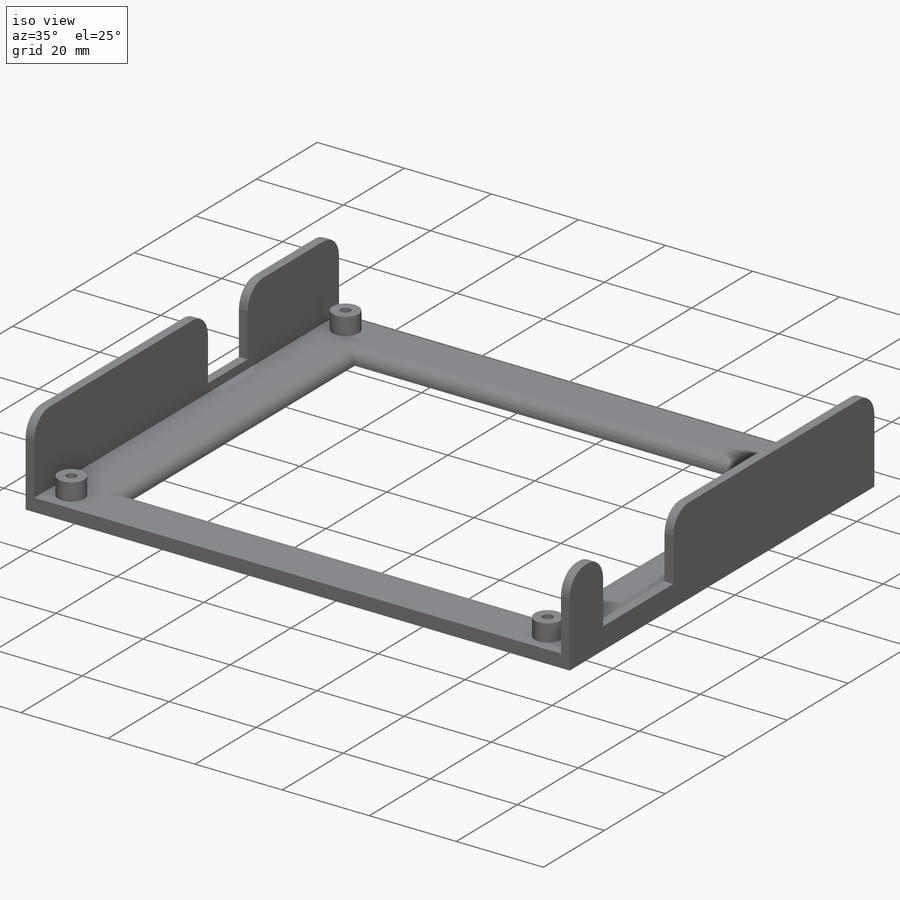
[diagram: iso view]
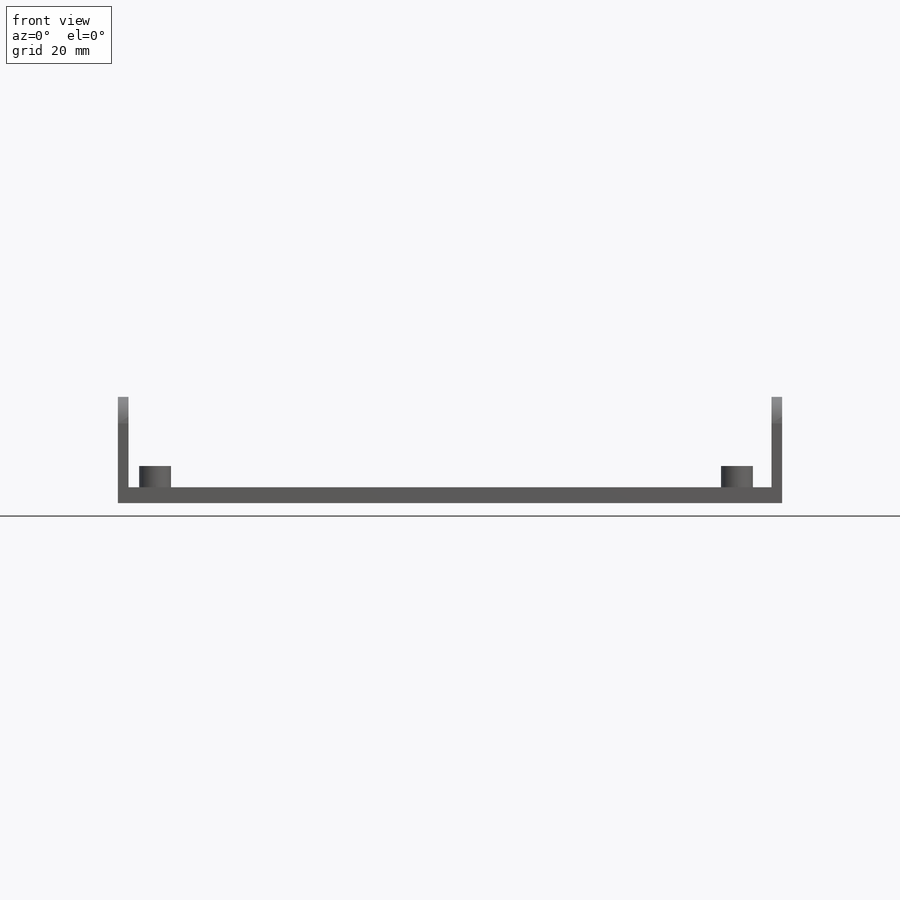
[diagram: front view]
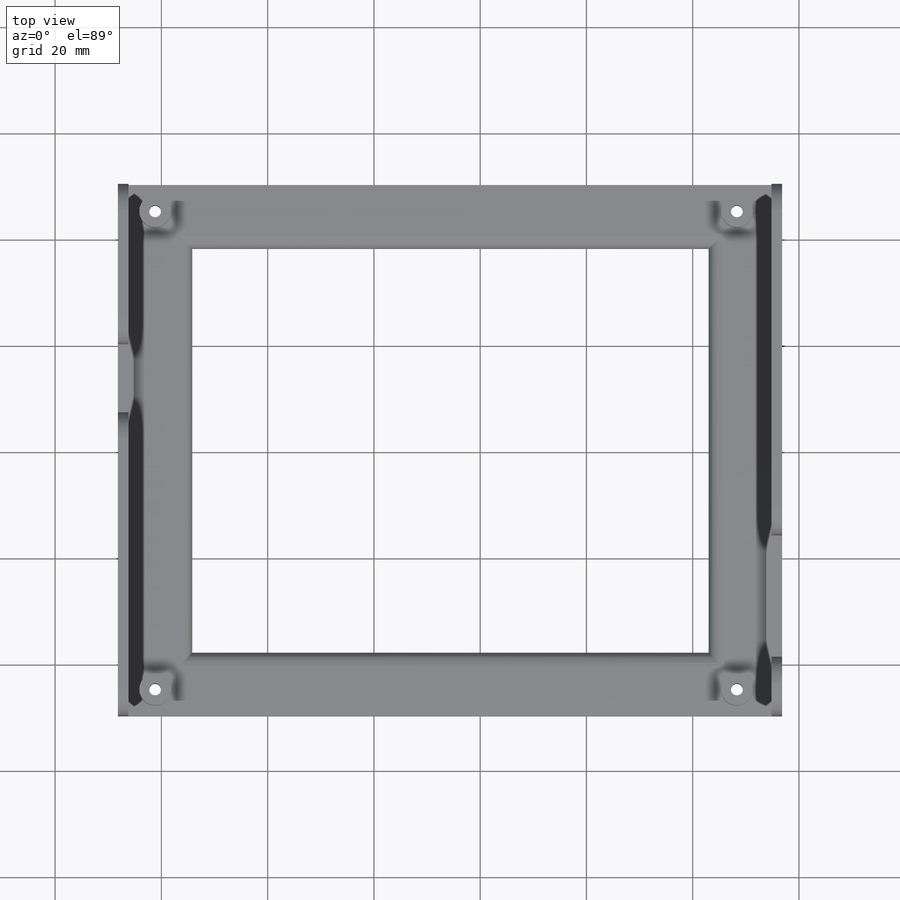
[diagram: top view]
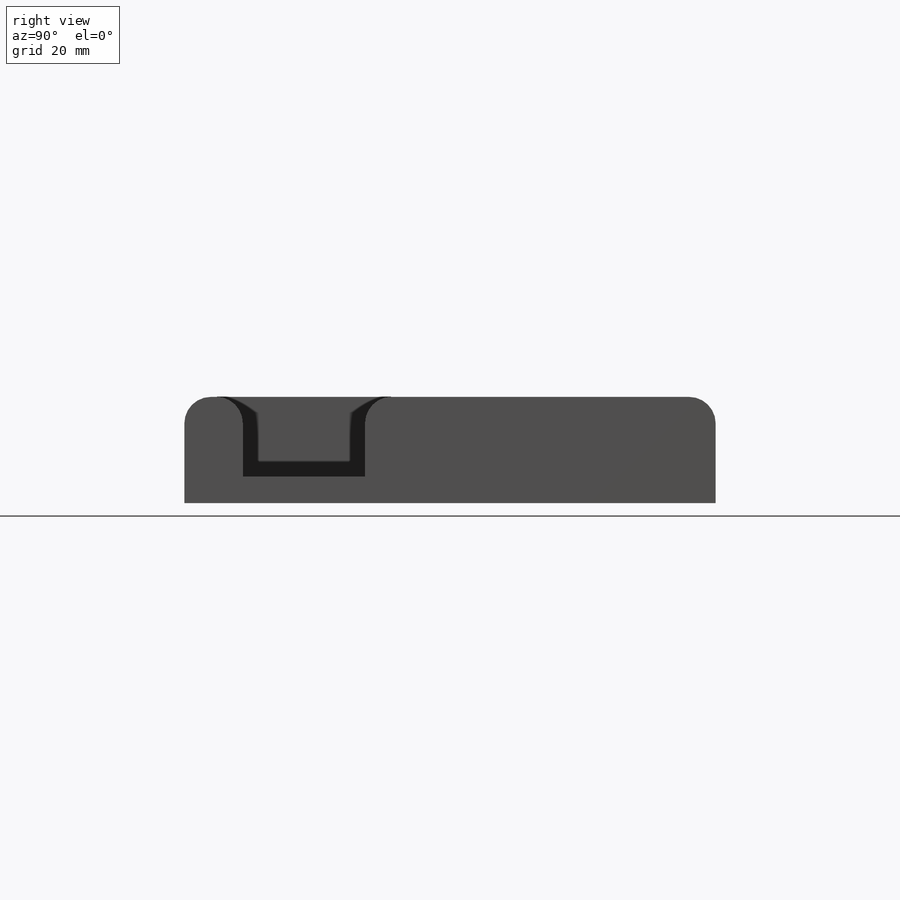
[diagram: right view]
SOLIDWORKS PART (.sldprt)
format: sldprt  version: not decoded by parser v0  size: 319,488 bytes
history: native  units: mm
features: sketch x7, cut_extrude x4, extrude x3, fillet x3, material x1 (+13 scaffold rows collapsed)
feature tree (31):
  scaffold x13  (default folders/planes/origin — collapsed)
  material  "Material <not specified>"
  sketch  "Sketch1"  dims[D1=100.0mm D2=125.0mm]
  extrude  "Boss-Extrude1"  Depth=3mm
  sketch  "Sketch2"  dims[D1=2.0mm D2=2.0mm]
  extrude  "Boss-Extrude2"  Depth=17mm
  sketch  "Sketch3"  dims[D1=6.0mm D2=5.0mm D3=5.0mm D4=5.0mm]
  extrude  "Boss-Extrude4"  Depth=4mm
  sketch  "Sketch4"  dims[D1=13.0mm D2=30.0mm D3=5.0mm]
  cut_extrude  "Cut-Extrude1"  Depth=2mm
  sketch  "Sketch5"  dims[D1=23.0mm D2=11.0mm D3=5.0mm]
  cut_extrude  "Cut-Extrude2"  Depth=2mm
  sketch  "Sketch6"  dims[D1=2.25mm]
  cut_extrude  "Cut-Extrude3"  Depth=22mm
  fillet  "Fillet1"  Radius=5mm
  fillet  "Fillet2"  Radius=5mm
  sketch  "Sketch7"  dims[D1=12.0mm D2=12.0mm D3=~97.170339mm D4=12.0mm D5=~11.829661mm]
  cut_extrude  "Cut-Extrude4"  Depth=22mm
  fillet  "Fillet3"  Radius=2.5mm
decode coverage: 17 of 17 modeling features carry decoded parameters
note: ~ marks probable driven/reference dimensions
note: suppression state not decoded; provenance and decode notes live in map.json
